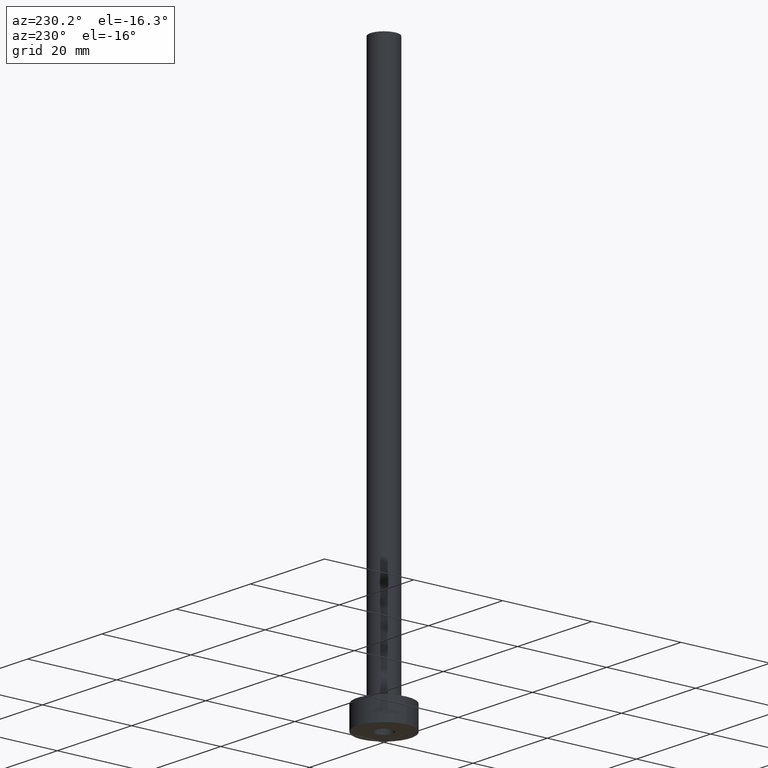
[diagram: clean part render]
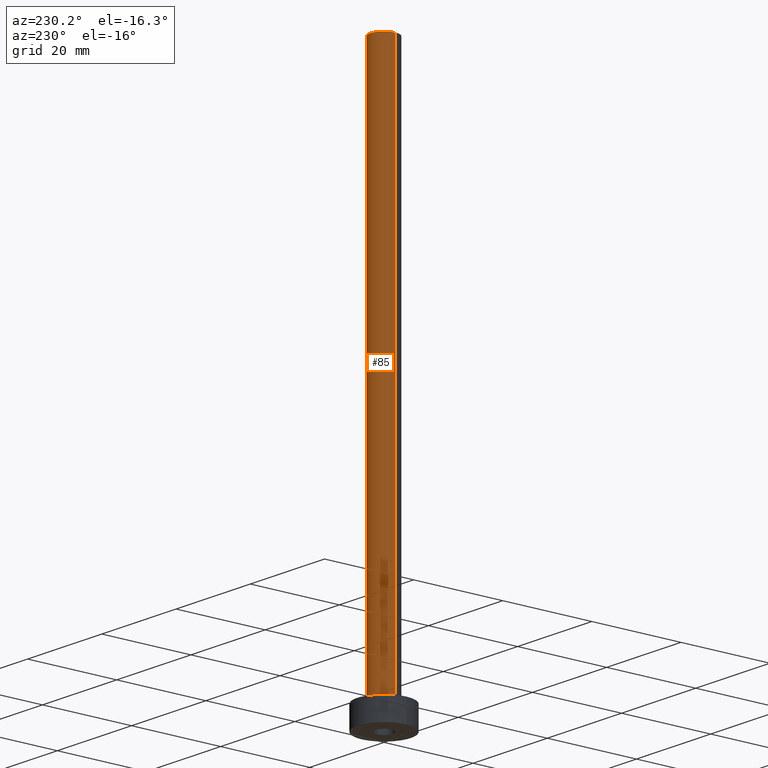
[diagram: same view with one face highlighted and labeled with its STEP entity id]
A machine part, auxiliary view. The second image highlights one B-rep face of the part: STEP entity #85.
In plain terms, the highlighted cylindrical surface (edge-blend (fillet) strip) has radius 3 mm, axis along (-0, -0, -1).
Its self-contained STEP definition (entity closure, byte-faithful):
#36 = ORIENTED_EDGE ( 'NONE', *, *, #416, .F. ) ;
#38 = DIRECTION ( 'NONE',  ( 1.000000000000000000, 0.000000000000000000, 0.000000000000000000 ) ) ;
#40 = EDGE_CURVE ( 'NONE', #121, #258, #394, .T. ) ;
#41 = DIRECTION ( 'NONE',  ( 0.000000000000000000, 0.000000000000000000, 1.000000000000000000 ) ) ;
#45 = EDGE_LOOP ( 'NONE', ( #132, #402, #367, #36 ) ) ;
#51 = DIRECTION ( 'NONE',  ( -0.000000000000000000, -0.000000000000000000, -1.000000000000000000 ) ) ;
#66 = CIRCLE ( 'NONE', #332, 3.000000000000000444 ) ;
#75 = FACE_OUTER_BOUND ( 'NONE', #45, .T. ) ;
#78 = CARTESIAN_POINT ( 'NONE',  ( -3.000000000000000444, 0.000000000000000000, 125.0000000000000000 ) ) ;
#79 = CARTESIAN_POINT ( 'NONE',  ( 0.000000000000000000, 0.000000000000000000, 125.0000000000000000 ) ) ;
#85 = ADVANCED_FACE ( 'NONE', ( #75 ), #399, .T. ) ;
#103 = DIRECTION ( 'NONE',  ( 0.000000000000000000, 0.000000000000000000, 1.000000000000000000 ) ) ;
#105 = DIRECTION ( 'NONE',  ( -0.000000000000000000, -0.000000000000000000, -1.000000000000000000 ) ) ;
#121 = VERTEX_POINT ( 'NONE', #321 ) ;
#132 = ORIENTED_EDGE ( 'NONE', *, *, #40, .F. ) ;
#156 = AXIS2_PLACEMENT_3D ( 'NONE', #79, #51, #297 ) ;
#174 = CARTESIAN_POINT ( 'NONE',  ( 3.000000000000000444, 3.673940397442060361E-16, 5.299999999999998934 ) ) ;
#179 = CARTESIAN_POINT ( 'NONE',  ( -3.000000000000000444, 0.000000000000000000, 5.299999999999998934 ) ) ;
#218 = DIRECTION ( 'NONE',  ( -0.000000000000000000, -0.000000000000000000, -1.000000000000000000 ) ) ;
#258 = VERTEX_POINT ( 'NONE', #461 ) ;
#275 = VERTEX_POINT ( 'NONE', #174 ) ;
#285 = CARTESIAN_POINT ( 'NONE',  ( 0.000000000000000000, 0.000000000000000000, 125.0000000000000000 ) ) ;
#291 = CARTESIAN_POINT ( 'NONE',  ( 3.000000000000000444, 3.673940397442060361E-16, 125.0000000000000000 ) ) ;
#297 = DIRECTION ( 'NONE',  ( -1.000000000000000000, 0.000000000000000000, 0.000000000000000000 ) ) ;
#298 = AXIS2_PLACEMENT_3D ( 'NONE', #285, #103, #38 ) ;
#304 = VECTOR ( 'NONE', #105, 1000.000000000000000 ) ;
#321 = CARTESIAN_POINT ( 'NONE',  ( 3.000000000000000444, 3.673940397442060361E-16, 125.0000000000000000 ) ) ;
#329 = CARTESIAN_POINT ( 'NONE',  ( 0.000000000000000000, 0.000000000000000000, 5.299999999999998934 ) ) ;
#331 = DIRECTION ( 'NONE',  ( 1.000000000000000000, 0.000000000000000000, 0.000000000000000000 ) ) ;
#332 = AXIS2_PLACEMENT_3D ( 'NONE', #329, #41, #331 ) ;
#364 = EDGE_CURVE ( 'NONE', #275, #380, #66, .T. ) ;
#367 = ORIENTED_EDGE ( 'NONE', *, *, #364, .T. ) ;
#380 = VERTEX_POINT ( 'NONE', #179 ) ;
#394 = CIRCLE ( 'NONE', #298, 3.000000000000000444 ) ;
#398 = EDGE_CURVE ( 'NONE', #121, #275, #437, .T. ) ;
#399 = CYLINDRICAL_SURFACE ( 'NONE', #156, 3.000000000000000444 ) ;
#402 = ORIENTED_EDGE ( 'NONE', *, *, #398, .T. ) ;
#404 = LINE ( 'NONE', #78, #409 ) ;
#409 = VECTOR ( 'NONE', #218, 1000.000000000000000 ) ;
#416 = EDGE_CURVE ( 'NONE', #258, #380, #404, .T. ) ;
#437 = LINE ( 'NONE', #291, #304 ) ;
#461 = CARTESIAN_POINT ( 'NONE',  ( -3.000000000000000444, 0.000000000000000000, 125.0000000000000000 ) ) ;